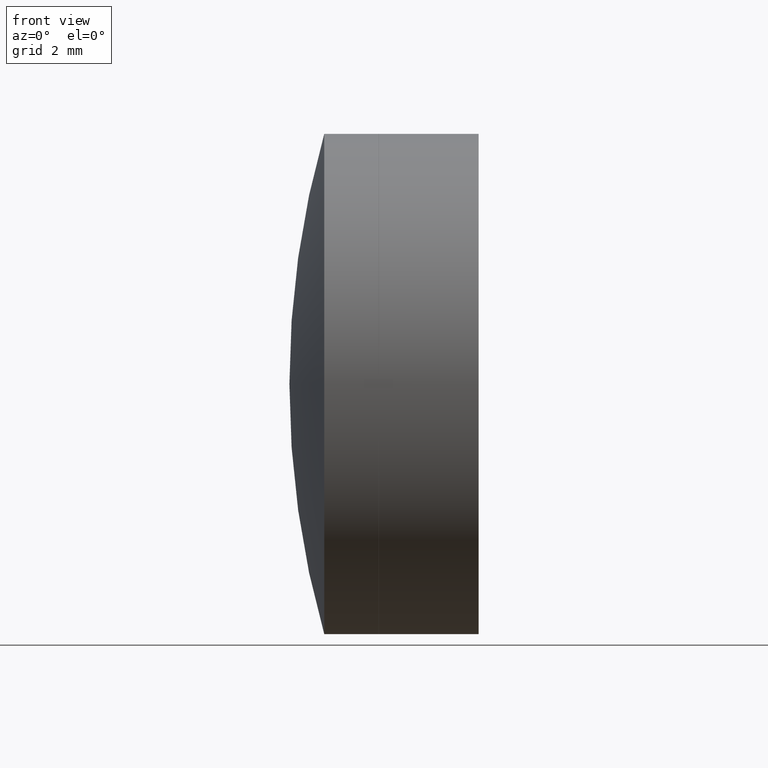
[diagram: clean part render]
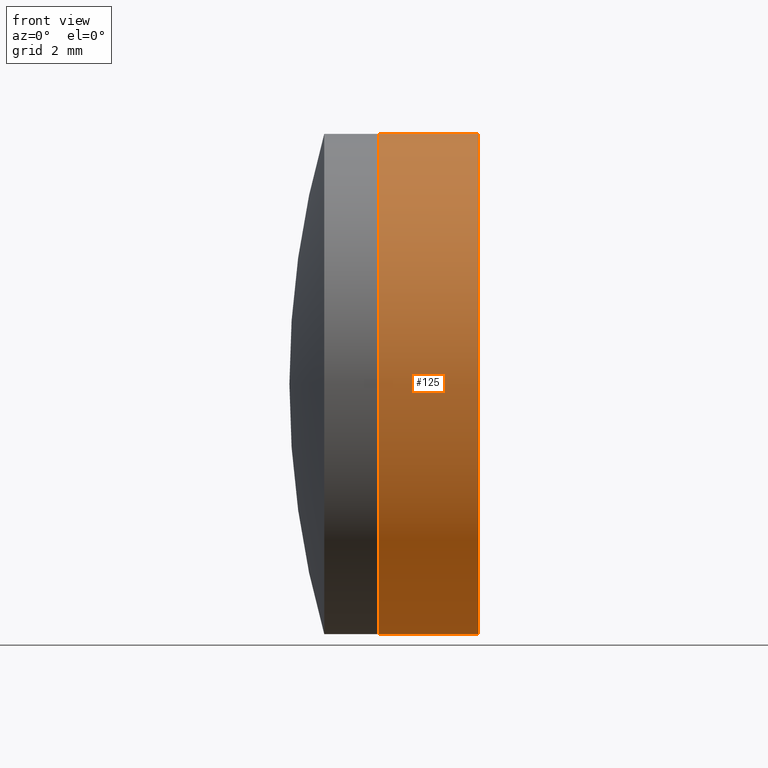
[diagram: same view with one face highlighted and labeled with its STEP entity id]
A machine part, front view. The second image highlights one B-rep face of the part: STEP entity #125.
In plain terms, the highlighted cylindrical surface (partial cylindrical patch) has radius 6.35 mm, axis along (-1, -0, -0).
Its self-contained STEP definition (entity closure, byte-faithful):
#6 = EDGE_LOOP ( 'NONE', ( #126, #276, #92, #60 ) ) ;
#21 = CARTESIAN_POINT ( 'NONE',  ( -0.5519199926577972300, 7.776507174585664600E-016, -6.349999999999977400 ) ) ;
#30 = LINE ( 'NONE', #21, #61 ) ;
#38 = CARTESIAN_POINT ( 'NONE',  ( 41.12501739380486000, 0.0000000000000000000, -6.350000000000002300 ) ) ;
#43 = VERTEX_POINT ( 'NONE', #173 ) ;
#50 = VERTEX_POINT ( 'NONE', #38 ) ;
#53 = AXIS2_PLACEMENT_3D ( 'NONE', #78, #56, #242 ) ;
#55 = DIRECTION ( 'NONE',  ( -1.000000000000000000, -0.0000000000000000000, -0.0000000000000000000 ) ) ;
#56 = DIRECTION ( 'NONE',  ( -1.000000000000000000, -0.0000000000000000000, -0.0000000000000000000 ) ) ;
#60 = ORIENTED_EDGE ( 'NONE', *, *, #241, .F. ) ;
#61 = VECTOR ( 'NONE', #89, 1000.000000000000000 ) ;
#69 = CARTESIAN_POINT ( 'NONE',  ( -0.5519199926577972300, 0.0000000000000000000, 0.0000000000000000000 ) ) ;
#78 = CARTESIAN_POINT ( 'NONE',  ( 38.58865659512440500, 0.0000000000000000000, 0.0000000000000000000 ) ) ;
#89 = DIRECTION ( 'NONE',  ( -1.000000000000000000, -0.0000000000000000000, -0.0000000000000000000 ) ) ;
#91 = CARTESIAN_POINT ( 'NONE',  ( -0.5519199926577972300, 0.0000000000000000000, 6.349999999999977400 ) ) ;
#92 = ORIENTED_EDGE ( 'NONE', *, *, #183, .T. ) ;
#100 = CARTESIAN_POINT ( 'NONE',  ( 38.58865659512440500, 0.0000000000000000000, -6.349999999999976600 ) ) ;
#118 = CYLINDRICAL_SURFACE ( 'NONE', #316, 6.349999999999977400 ) ;
#125 = ADVANCED_FACE ( 'NONE', ( #208 ), #118, .T. ) ;
#126 = ORIENTED_EDGE ( 'NONE', *, *, #132, .F. ) ;
#130 = VECTOR ( 'NONE', #307, 1000.000000000000000 ) ;
#132 = EDGE_CURVE ( 'NONE', #50, #246, #30, .T. ) ;
#149 = DIRECTION ( 'NONE',  ( 0.0000000000000000000, 0.0000000000000000000, 1.000000000000000000 ) ) ;
#154 = VERTEX_POINT ( 'NONE', #240 ) ;
#165 = CARTESIAN_POINT ( 'NONE',  ( 41.12501739380485300, 0.0000000000000000000, 0.0000000000000000000 ) ) ;
#173 = CARTESIAN_POINT ( 'NONE',  ( 41.12501739380486000, -7.776507174585695100E-016, 6.350000000000002300 ) ) ;
#183 = EDGE_CURVE ( 'NONE', #43, #154, #344, .T. ) ;
#208 = FACE_OUTER_BOUND ( 'NONE', #6, .T. ) ;
#214 = DIRECTION ( 'NONE',  ( 0.0000000000000000000, 0.0000000000000000000, 1.000000000000000000 ) ) ;
#217 = EDGE_CURVE ( 'NONE', #50, #43, #288, .T. ) ;
#237 = CIRCLE ( 'NONE', #53, 6.349999999999977400 ) ;
#240 = CARTESIAN_POINT ( 'NONE',  ( 38.58865659512440500, -7.776507174585663600E-016, 6.349999999999978300 ) ) ;
#241 = EDGE_CURVE ( 'NONE', #246, #154, #237, .T. ) ;
#242 = DIRECTION ( 'NONE',  ( 0.0000000000000000000, 0.0000000000000000000, 1.000000000000000000 ) ) ;
#246 = VERTEX_POINT ( 'NONE', #100 ) ;
#247 = AXIS2_PLACEMENT_3D ( 'NONE', #165, #55, #214 ) ;
#276 = ORIENTED_EDGE ( 'NONE', *, *, #217, .T. ) ;
#288 = CIRCLE ( 'NONE', #247, 6.349999999999976600 ) ;
#307 = DIRECTION ( 'NONE',  ( -1.000000000000000000, -0.0000000000000000000, -0.0000000000000000000 ) ) ;
#315 = DIRECTION ( 'NONE',  ( -1.000000000000000000, -0.0000000000000000000, -0.0000000000000000000 ) ) ;
#316 = AXIS2_PLACEMENT_3D ( 'NONE', #69, #315, #149 ) ;
#344 = LINE ( 'NONE', #91, #130 ) ;